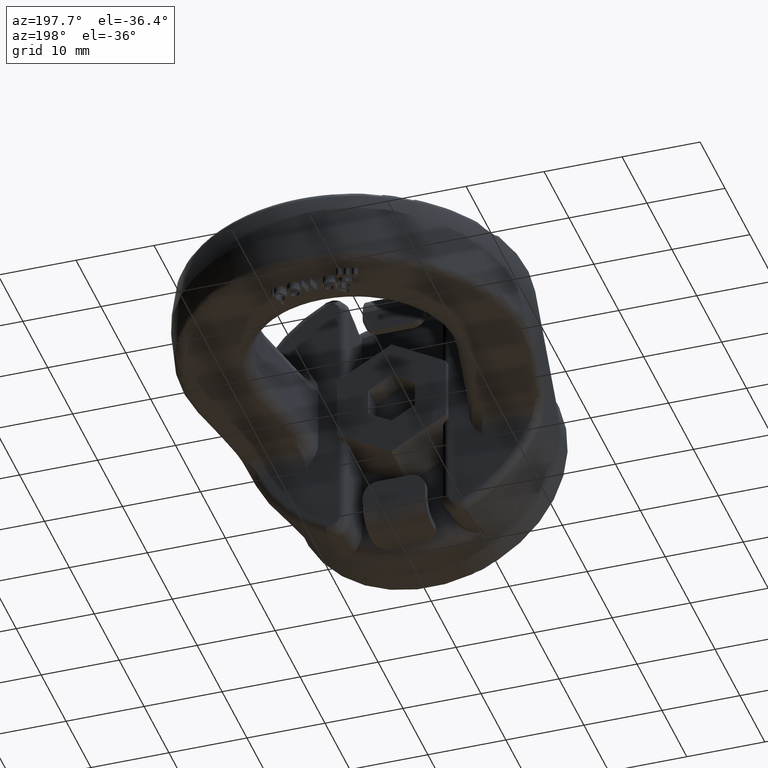
[diagram: clean part render]
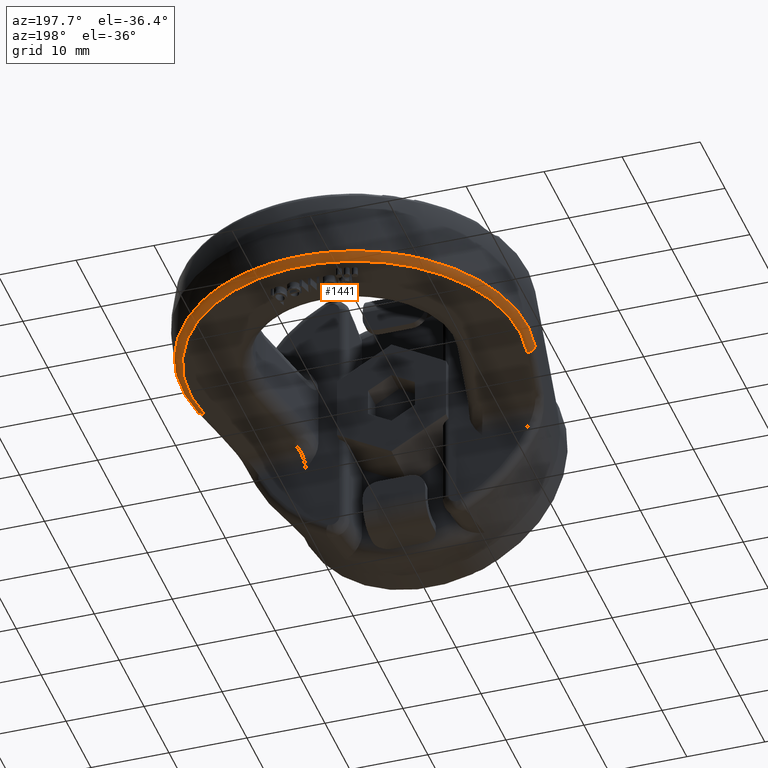
[diagram: same view with one face highlighted and labeled with its STEP entity id]
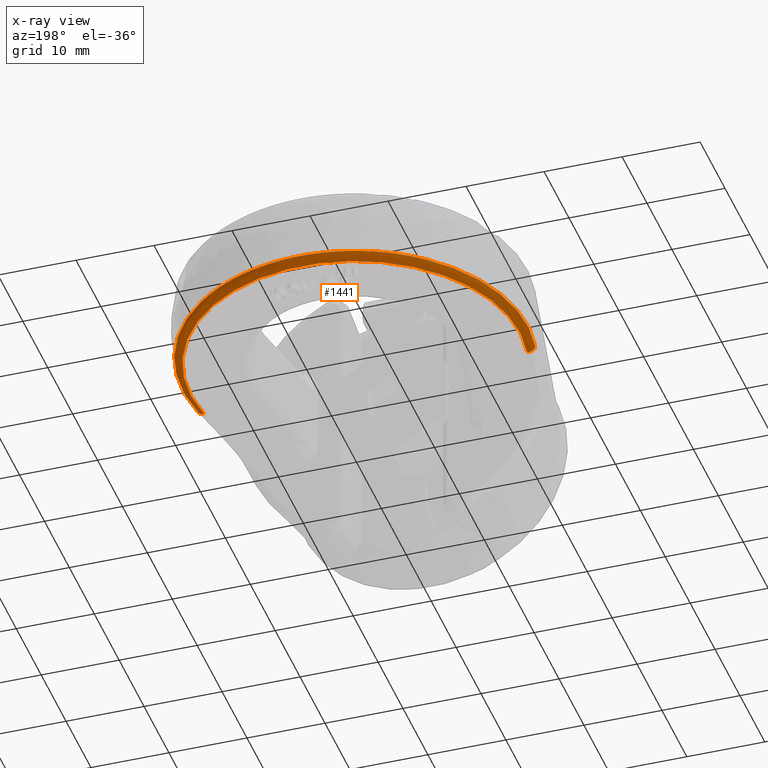
[diagram: x-ray of the same camera — body ghosted, the highlighted face saturated]
A machine part, auxiliary view. The second image highlights one B-rep face of the part: STEP entity #1441.
The next image is the same camera in x-ray: the body ghosted, the highlighted face saturated — about 0% of this face is hidden behind the body in this view.
In plain terms, the highlighted toroidal blend (fillet) surface has major radius 21.1246 mm and minor (blend) radius 1 mm.
Its self-contained STEP definition (entity closure, byte-faithful):
#1021=TOROIDAL_SURFACE('',#5249,21.1246301742776,1.);
#1209=FACE_OUTER_BOUND('',#1972,.T.);
#1441=ADVANCED_FACE('',(#1209),#1021,.T.);
#1686=CIRCLE('',#5121,22.1071711126161);
#1713=CIRCLE('',#5224,21.1246301742776);
#1719=CIRCLE('',#5247,1.);
#1720=CIRCLE('',#5248,1.);
#1972=EDGE_LOOP('',(#3389,#3390,#3391,#3392));
#3389=ORIENTED_EDGE('',*,*,#4628,.T.);
#3390=ORIENTED_EDGE('',*,*,#4580,.F.);
#3391=ORIENTED_EDGE('',*,*,#4629,.F.);
#3392=ORIENTED_EDGE('',*,*,#4370,.F.);
#3963=VERTEX_POINT('',#6713);
#3972=VERTEX_POINT('',#6785);
#4101=VERTEX_POINT('',#8250);
#4102=VERTEX_POINT('',#8252);
#4370=EDGE_CURVE('',#3972,#3963,#1686,.T.);
#4580=EDGE_CURVE('',#4101,#4102,#1713,.T.);
#4628=EDGE_CURVE('',#3972,#4102,#1719,.T.);
#4629=EDGE_CURVE('',#3963,#4101,#1720,.T.);
#5121=AXIS2_PLACEMENT_3D('',#6863,#5475,#5476);
#5224=AXIS2_PLACEMENT_3D('',#8251,#5804,#5805);
#5247=AXIS2_PLACEMENT_3D('',#8611,#5869,#5870);
#5248=AXIS2_PLACEMENT_3D('',#8624,#5871,#5872);
#5249=AXIS2_PLACEMENT_3D('',#8625,#5873,#5874);
#5475=DIRECTION('',(-2.34291072916505E-15,-1.0842021724855E-16,1.));
#5476=DIRECTION('',(-2.78777225301435E-31,1.,1.17703219498774E-16));
#5804=DIRECTION('',(2.34291072916505E-15,1.0842021724855E-16,-1.));
#5805=DIRECTION('',(-2.18807705905196E-31,1.,1.23177787847554E-16));
#5869=DIRECTION('',(0.197340270513563,0.980335053761536,4.6235063708256E-16));
#5870=DIRECTION('',(0.980335053761536,-0.197340270513564,2.60208521396521E-15));
#5871=DIRECTION('',(0.197340270513571,-0.980335053761535,1.14701223711359E-15));
#5872=DIRECTION('',(-0.980335053761536,-0.197340270513571,-2.60208521396521E-15));
#5873=DIRECTION('',(-2.34291072916505E-15,-1.0842021724855E-16,1.));
#5874=DIRECTION('',(-2.78557235691303E-31,1.,1.17610337143191E-16));
#6713=CARTESIAN_POINT('',(-21.672434781202,26.1373648723466,-4.18604651162796));
#6785=CARTESIAN_POINT('',(21.6724347812021,26.1373648723467,-4.18604651162788));
#6863=CARTESIAN_POINT('',(9.80753328487695E-15,30.5,-4.18604651162791));
#8250=CARTESIAN_POINT('',(-20.709215457593,26.3312597669089,-5.00000000000005));
#8251=CARTESIAN_POINT('',(1.17145536458253E-14,30.5,-5.));
#8252=CARTESIAN_POINT('',(20.709215457593,26.3312597669091,-4.99999999999996));
#8611=CARTESIAN_POINT('',(20.7092154575931,26.331259766909,-3.99999999999996));
#8624=CARTESIAN_POINT('',(-20.709215457593,26.3312597669089,-4.00000000000005));
#8625=CARTESIAN_POINT('',(9.3716429166602E-15,30.5,-4.));